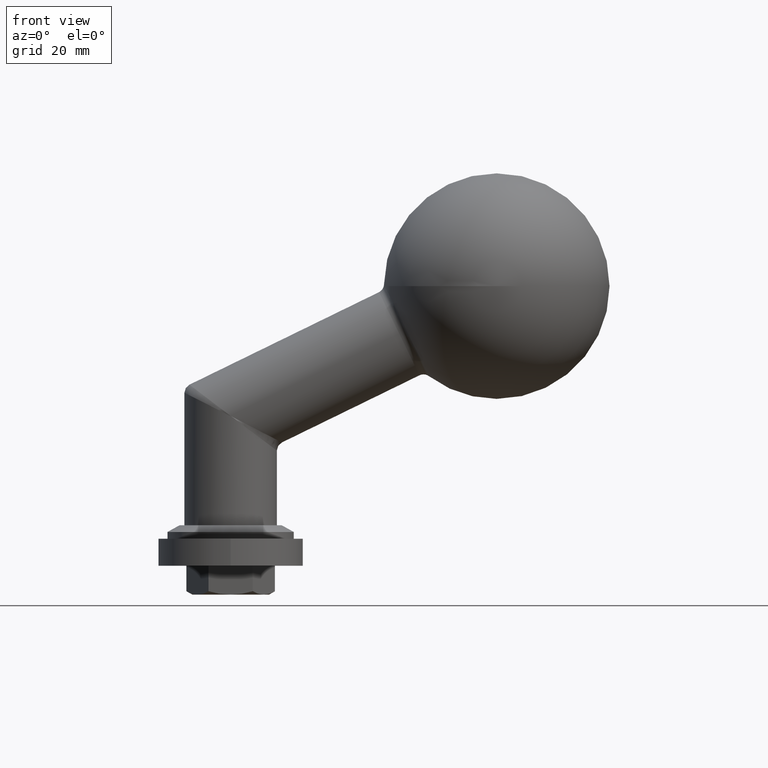
[diagram: clean part render]
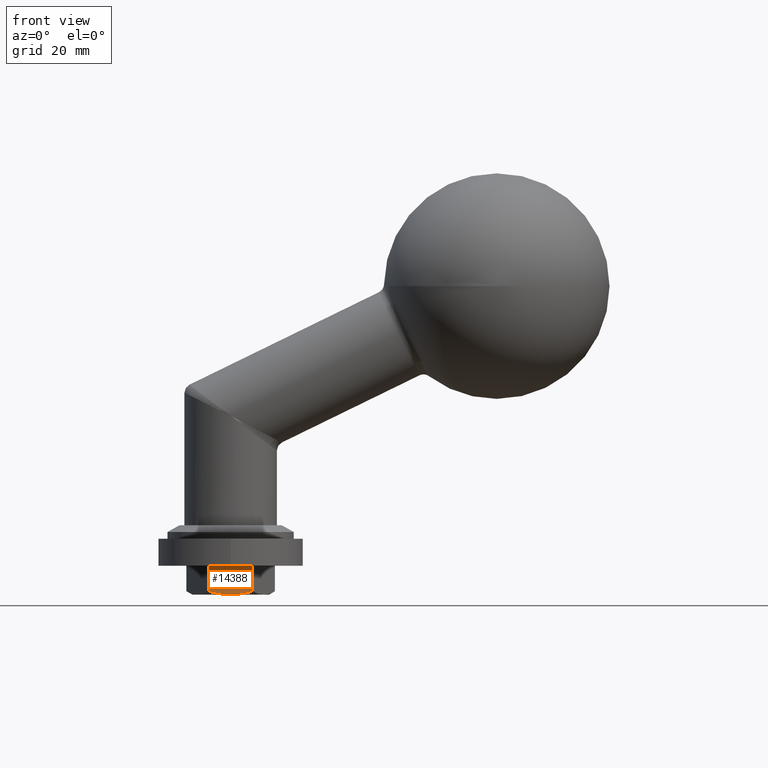
[diagram: same view with one face highlighted and labeled with its STEP entity id]
A machine part, front view. The second image highlights one B-rep face of the part: STEP entity #14388.
In plain terms, the highlighted planar face has unit normal (0, 1, 0).
Its self-contained STEP definition (entity closure, byte-faithful):
#33 = VECTOR ( 'NONE', #4061, 1000.000000000000000 ) ;
#51 = EDGE_CURVE ( 'NONE', #544, #8212, #15674, .T. ) ;
#318 = ORIENTED_EDGE ( 'NONE', *, *, #6775, .T. ) ;
#385 = CARTESIAN_POINT ( 'NONE',  ( 1.670833950186594086, 6.326746410041424795, -8.500000000000003553 ) ) ;
#544 = VERTEX_POINT ( 'NONE', #13813 ) ;
#554 = CARTESIAN_POINT ( 'NONE',  ( 4.907477288111821601, 5.640810621445154993, -8.500000000000001776 ) ) ;
#1381 = ORIENTED_EDGE ( 'NONE', *, *, #51, .T. ) ;
#1691 = CARTESIAN_POINT ( 'NONE',  ( -4.109315865771624665, 5.871219977467637463, -8.500000000000000000 ) ) ;
#2826 = EDGE_CURVE ( 'NONE', #3669, #11222, #13197, .T. ) ;
#2989 = CARTESIAN_POINT ( 'NONE',  ( -3.291841989995555107, 6.064472405483639861, -8.500000000000000000 ) ) ;
#3071 = VECTOR ( 'NONE', #16543, 1000.000000000000000 ) ;
#3487 = LINE ( 'NONE', #15743, #33 ) ;
#3669 = VERTEX_POINT ( 'NONE', #15649 ) ;
#3993 = CARTESIAN_POINT ( 'NONE',  ( -4.907477288111821601, 0.000000000000000000, -8.500000000000000000 ) ) ;
#4061 = DIRECTION ( 'NONE',  ( 0.000000000000000000, -1.000000000000000000, 0.000000000000000000 ) ) ;
#4240 = DIRECTION ( 'NONE',  ( 1.000000000000000000, 0.000000000000000000, -1.767428939690775795E-16 ) ) ;
#4257 = CARTESIAN_POINT ( 'NONE',  ( 0.8297756611674531602, 6.400000000000000355, -8.499999999999998224 ) ) ;
#4418 = VECTOR ( 'NONE', #12247, 1000.000000000000000 ) ;
#4536 = CARTESIAN_POINT ( 'NONE',  ( 4.907477288111818048, 0.000000000000000000, -8.500000000000001776 ) ) ;
#4559 = CARTESIAN_POINT ( 'NONE',  ( 4.907477288111821601, 5.640810621445154993, -8.500000000000001776 ) ) ;
#5113 = AXIS2_PLACEMENT_3D ( 'NONE', #9522, #10627, #4240 ) ;
#5597 = CARTESIAN_POINT ( 'NONE',  ( -1.479908891651837880E-15, 6.400000000000003020, -8.499999999999996447 ) ) ;
#6775 = EDGE_CURVE ( 'NONE', #8551, #3669, #7573, .T. ) ;
#6786 = CARTESIAN_POINT ( 'NONE',  ( -0.8292829549184188576, 6.400000000000000355, -8.500000000000000000 ) ) ;
#7349 = B_SPLINE_CURVE_WITH_KNOTS ( 'NONE', 3,
 ( #5597, #4257, #385, #8352, #16171, #554 ),
 .UNSPECIFIED., .F., .F.,
 ( 4, 2, 4 ),
 ( 0.01372020457462545459, 0.01620398948992137628, 0.01868777440521729449 ),
 .UNSPECIFIED. ) ;
#7573 = LINE ( 'NONE', #10269, #3071 ) ;
#8212 = VERTEX_POINT ( 'NONE', #11311 ) ;
#8352 = CARTESIAN_POINT ( 'NONE',  ( 3.310045224908693129, 6.060644797896532765, -8.500000000000001776 ) ) ;
#8551 = VERTEX_POINT ( 'NONE', #4559 ) ;
#9466 = CARTESIAN_POINT ( 'NONE',  ( -4.907477288111821601, 5.640810621445154993, -8.500000000000000000 ) ) ;
#9522 = CARTESIAN_POINT ( 'NONE',  ( 4.907477288111818048, 6.400000000000003020, -8.500000000000001776 ) ) ;
#10269 = CARTESIAN_POINT ( 'NONE',  ( 4.907477288111818048, 6.400000000000003020, -8.500000000000001776 ) ) ;
#10627 = DIRECTION ( 'NONE',  ( 1.767428939690775795E-16, 0.000000000000000000, 1.000000000000000000 ) ) ;
#10860 = PLANE ( 'NONE',  #5113 ) ;
#11222 = VERTEX_POINT ( 'NONE', #3993 ) ;
#11311 = CARTESIAN_POINT ( 'NONE',  ( -1.479908891651837880E-15, 6.400000000000003020, -8.499999999999996447 ) ) ;
#11973 = ORIENTED_EDGE ( 'NONE', *, *, #2826, .T. ) ;
#12247 = DIRECTION ( 'NONE',  ( -1.000000000000000000, 0.000000000000000000, 1.767428939690775548E-16 ) ) ;
#12451 = EDGE_LOOP ( 'NONE', ( #16445, #1381, #14464, #318, #11973 ) ) ;
#13197 = LINE ( 'NONE', #4536, #4418 ) ;
#13428 = CARTESIAN_POINT ( 'NONE',  ( -1.479908891651837880E-15, 6.400000000000003020, -8.499999999999996447 ) ) ;
#13813 = CARTESIAN_POINT ( 'NONE',  ( -4.907477288111821601, 5.640810621445154993, -8.500000000000000000 ) ) ;
#14388 = ADVANCED_FACE ( 'NONE', ( #15828 ), #10860, .F. ) ;
#14464 = ORIENTED_EDGE ( 'NONE', *, *, #15798, .T. ) ;
#14686 = CARTESIAN_POINT ( 'NONE',  ( -1.653193167784649198, 6.328718253951436168, -8.500000000000000000 ) ) ;
#14870 = EDGE_CURVE ( 'NONE', #544, #11222, #3487, .T. ) ;
#15649 = CARTESIAN_POINT ( 'NONE',  ( 4.907477288111818048, 0.000000000000000000, -8.500000000000001776 ) ) ;
#15674 = B_SPLINE_CURVE_WITH_KNOTS ( 'NONE', 3,
 ( #9466, #1691, #2989, #14686, #6786, #13428 ),
 .UNSPECIFIED., .F., .F.,
 ( 4, 2, 4 ),
 ( 0.008755584399961846911, 0.01123789448729365162, 0.01372020457462545459 ),
 .UNSPECIFIED. ) ;
#15743 = CARTESIAN_POINT ( 'NONE',  ( -4.907477288111821601, 6.400000000000003020, -8.500000000000000000 ) ) ;
#15798 = EDGE_CURVE ( 'NONE', #8212, #8551, #7349, .T. ) ;
#15828 = FACE_OUTER_BOUND ( 'NONE', #12451, .T. ) ;
#16171 = CARTESIAN_POINT ( 'NONE',  ( 4.113965570114755721, 5.869877723440524164, -8.500000000000001776 ) ) ;
#16445 = ORIENTED_EDGE ( 'NONE', *, *, #14870, .F. ) ;
#16543 = DIRECTION ( 'NONE',  ( 0.000000000000000000, -1.000000000000000000, 0.000000000000000000 ) ) ;